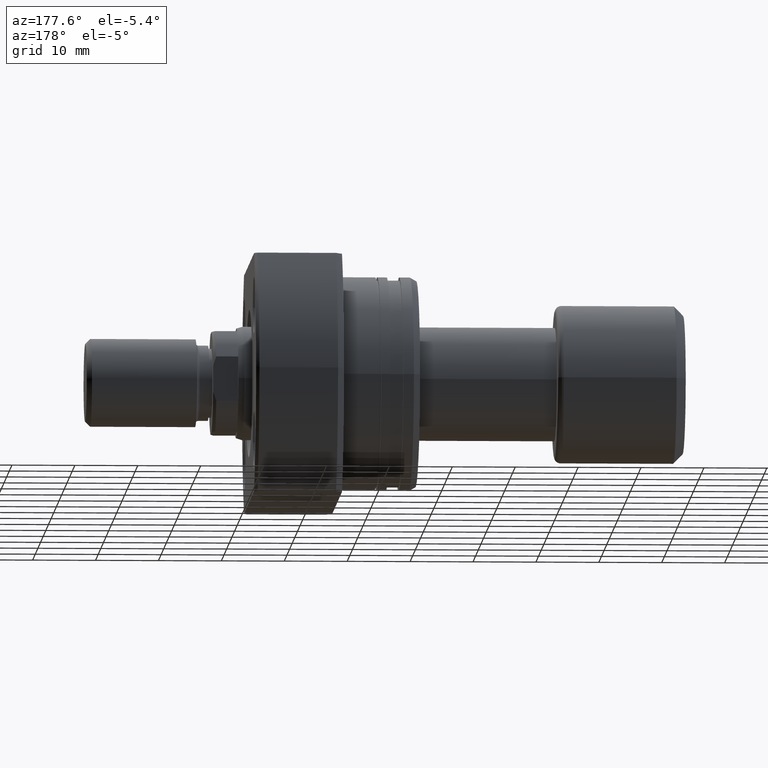
[diagram: clean part render]
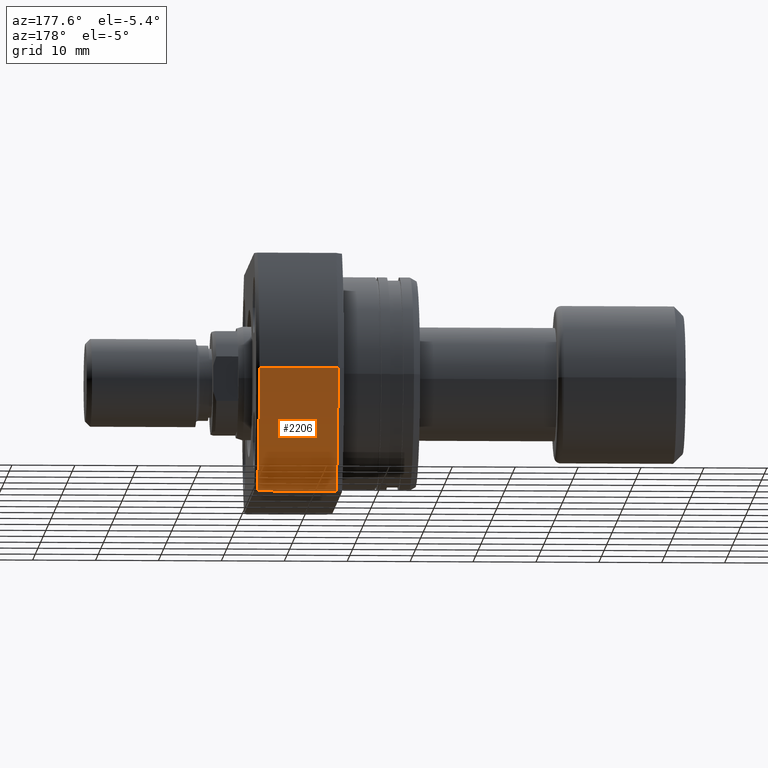
[diagram: same view with one face highlighted and labeled with its STEP entity id]
A machine part, auxiliary view. The second image highlights one B-rep face of the part: STEP entity #2206.
In plain terms, the highlighted cylindrical surface (partial cylindrical patch) has radius 27.5 mm, axis along (1, 0, 0).
Its self-contained STEP definition (entity closure, byte-faithful):
#17 = EDGE_CURVE ( 'NONE', #677, #443, #715, .T. ) ;
#173 = EDGE_CURVE ( 'NONE', #443, #3641, #1751, .T. ) ;
#443 = VERTEX_POINT ( 'NONE', #1448 ) ;
#578 = AXIS2_PLACEMENT_3D ( 'NONE', #2610, #2330, #2474 ) ;
#643 = ORIENTED_EDGE ( 'NONE', *, *, #17, .F. ) ;
#677 = VERTEX_POINT ( 'NONE', #1565 ) ;
#701 = DIRECTION ( 'NONE',  ( 1.000000000000000000, -2.886466111666351885E-14, -0.000000000000000000 ) ) ;
#715 = LINE ( 'NONE', #3235, #1092 ) ;
#1002 = CARTESIAN_POINT ( 'NONE',  ( 26.00000000000008882, 2.403080511534438786E-16, 0.000000000000000000 ) ) ;
#1046 = ORIENTED_EDGE ( 'NONE', *, *, #1800, .T. ) ;
#1092 = VECTOR ( 'NONE', #701, 1000.000000000000000 ) ;
#1329 = CARTESIAN_POINT ( 'NONE',  ( 13.49999999999999112, 27.49999999999991473, 0.000000000000000000 ) ) ;
#1346 = CARTESIAN_POINT ( 'NONE',  ( 26.50000000000000711, 2.449293598294708880E-16, 0.000000000000000000 ) ) ;
#1448 = CARTESIAN_POINT ( 'NONE',  ( 26.00000000000007461, 19.88089535207093306, -18.99999999999999645 ) ) ;
#1520 = DIRECTION ( 'NONE',  ( 1.000000000000000000, 9.242617352055502386E-18, -0.000000000000000000 ) ) ;
#1565 = CARTESIAN_POINT ( 'NONE',  ( 13.49999999999998757, 19.88089535207129543, -18.99999999999999645 ) ) ;
#1707 = CIRCLE ( 'NONE', #578, 27.49999999999991473 ) ;
#1751 = CIRCLE ( 'NONE', #2878, 27.49999999999991473 ) ;
#1800 = EDGE_CURVE ( 'NONE', #3275, #3641, #1948, .T. ) ;
#1881 = VECTOR ( 'NONE', #1520, 1000.000000000000000 ) ;
#1922 = DIRECTION ( 'NONE',  ( 1.000000000000000000, 9.242617352055502386E-18, -0.000000000000000000 ) ) ;
#1948 = LINE ( 'NONE', #3088, #1881 ) ;
#2179 = CYLINDRICAL_SURFACE ( 'NONE', #2233, 27.49999999999991473 ) ;
#2206 = ADVANCED_FACE ( 'NONE', ( #2443 ), #2179, .T. ) ;
#2233 = AXIS2_PLACEMENT_3D ( 'NONE', #1346, #1922, #3101 ) ;
#2330 = DIRECTION ( 'NONE',  ( 1.000000000000000000, 9.242617352055502386E-18, -0.000000000000000000 ) ) ;
#2343 = CARTESIAN_POINT ( 'NONE',  ( 26.00000000000008882, 27.49999999999991473, 0.000000000000000000 ) ) ;
#2443 = FACE_OUTER_BOUND ( 'NONE', #2445, .T. ) ;
#2445 = EDGE_LOOP ( 'NONE', ( #2461, #1046, #2921, #643 ) ) ;
#2461 = ORIENTED_EDGE ( 'NONE', *, *, #3269, .T. ) ;
#2474 = DIRECTION ( 'NONE',  ( 0.000000000000000000, 1.000000000000000000, 0.000000000000000000 ) ) ;
#2610 = CARTESIAN_POINT ( 'NONE',  ( 13.49999999999999112, 1.247753342527491952E-16, 0.000000000000000000 ) ) ;
#2878 = AXIS2_PLACEMENT_3D ( 'NONE', #1002, #3309, #2989 ) ;
#2921 = ORIENTED_EDGE ( 'NONE', *, *, #173, .F. ) ;
#2989 = DIRECTION ( 'NONE',  ( 0.000000000000000000, 1.000000000000000000, 0.000000000000000000 ) ) ;
#3088 = CARTESIAN_POINT ( 'NONE',  ( 26.50000000000000711, 27.49999999999991473, 0.000000000000000000 ) ) ;
#3101 = DIRECTION ( 'NONE',  ( 0.000000000000000000, 1.000000000000000000, 0.000000000000000000 ) ) ;
#3235 = CARTESIAN_POINT ( 'NONE',  ( -2.151057110211240797E-13, 19.88089535207168268, -18.99999999999999645 ) ) ;
#3269 = EDGE_CURVE ( 'NONE', #677, #3275, #1707, .T. ) ;
#3275 = VERTEX_POINT ( 'NONE', #1329 ) ;
#3309 = DIRECTION ( 'NONE',  ( 1.000000000000000000, 9.242617352055502386E-18, -0.000000000000000000 ) ) ;
#3641 = VERTEX_POINT ( 'NONE', #2343 ) ;